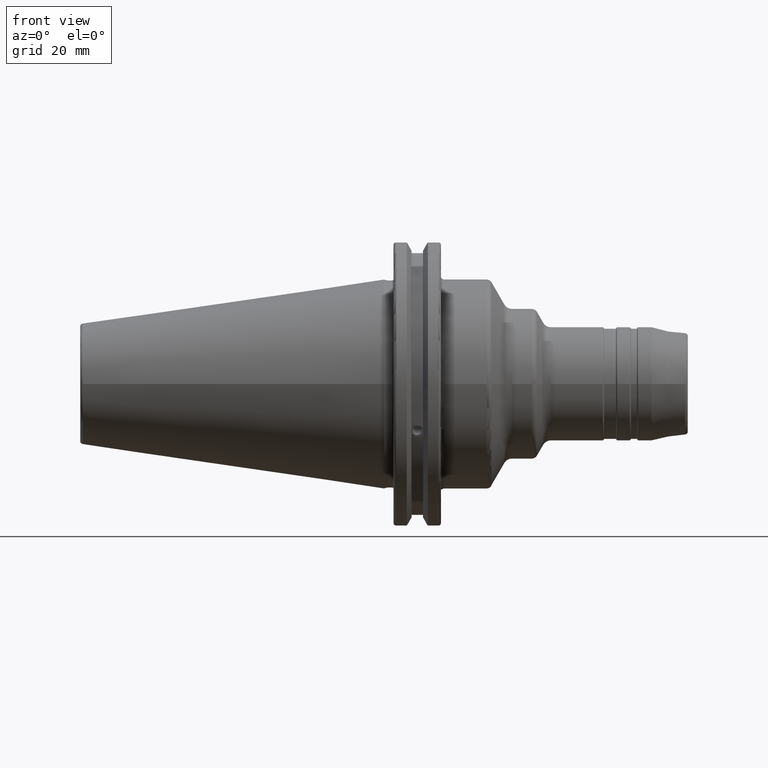
[diagram: clean part render]
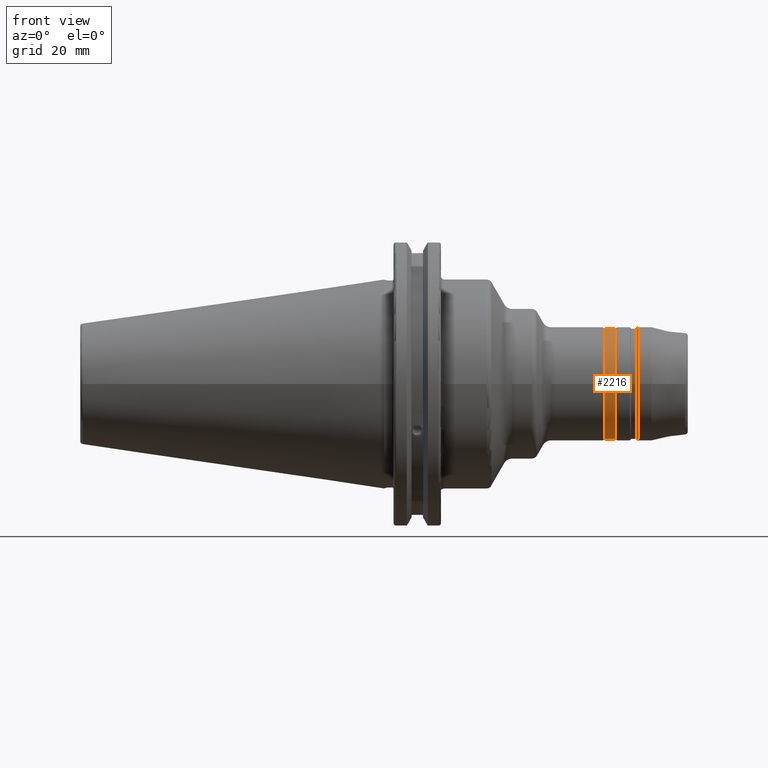
[diagram: same view with one face highlighted and labeled with its STEP entity id]
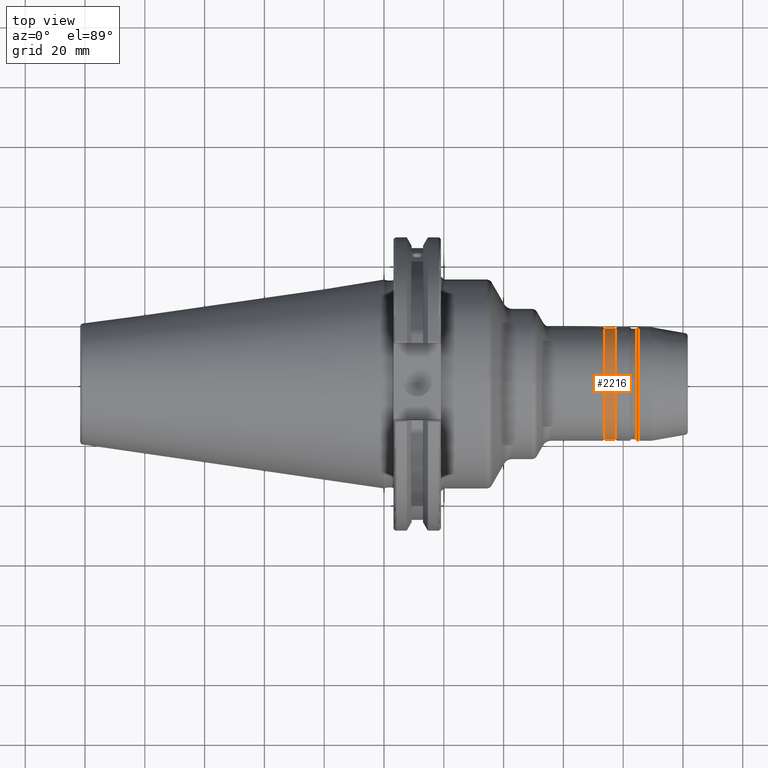
[diagram: same view with one face highlighted and labeled with its STEP entity id]
A machine part, front view. The second image highlights one B-rep face of the part: STEP entity #2216.
A second angle (top view) of the same face is appended — the face is thin or edge-on in the first view.
In plain terms, the highlighted cylindrical surface (bore or boss wall) has radius 18.5 mm, axis along (1, 0, 0).
Its self-contained STEP definition (entity closure, byte-faithful):
#181=FACE_OUTER_BOUND('',#295,.T.);
#295=EDGE_LOOP('',(#1526,#1527,#1528,#1529,#1530,#1531,#1532,#1533));
#421=LINE('',#3548,#528);
#528=VECTOR('',#2756,18.5);
#657=CIRCLE('',#2378,18.5);
#662=CIRCLE('',#2383,18.5);
#663=CIRCLE('',#2384,18.5);
#664=CIRCLE('',#2386,18.5);
#665=CIRCLE('',#2387,18.5);
#666=CIRCLE('',#2388,18.5);
#856=VERTEX_POINT('',#3533);
#857=VERTEX_POINT('',#3534);
#861=VERTEX_POINT('',#3543);
#862=VERTEX_POINT('',#3547);
#863=VERTEX_POINT('',#3549);
#864=VERTEX_POINT('',#3551);
#1127=EDGE_CURVE('',#856,#857,#657,.T.);
#1132=EDGE_CURVE('',#857,#861,#662,.T.);
#1133=EDGE_CURVE('',#861,#856,#663,.T.);
#1134=EDGE_CURVE('',#861,#862,#421,.T.);
#1135=EDGE_CURVE('',#863,#862,#664,.T.);
#1136=EDGE_CURVE('',#864,#863,#665,.T.);
#1137=EDGE_CURVE('',#862,#864,#666,.T.);
#1526=ORIENTED_EDGE('',*,*,#1127,.F.);
#1527=ORIENTED_EDGE('',*,*,#1133,.F.);
#1528=ORIENTED_EDGE('',*,*,#1134,.T.);
#1529=ORIENTED_EDGE('',*,*,#1135,.F.);
#1530=ORIENTED_EDGE('',*,*,#1136,.F.);
#1531=ORIENTED_EDGE('',*,*,#1137,.F.);
#1532=ORIENTED_EDGE('',*,*,#1134,.F.);
#1533=ORIENTED_EDGE('',*,*,#1132,.F.);
#2175=CYLINDRICAL_SURFACE('',#2385,18.5);
#2216=ADVANCED_FACE('',(#181),#2175,.T.);
#2378=AXIS2_PLACEMENT_3D('',#3535,#2740,#2741);
#2383=AXIS2_PLACEMENT_3D('',#3544,#2750,#2751);
#2384=AXIS2_PLACEMENT_3D('',#3545,#2752,#2753);
#2385=AXIS2_PLACEMENT_3D('',#3546,#2754,#2755);
#2386=AXIS2_PLACEMENT_3D('',#3550,#2757,#2758);
#2387=AXIS2_PLACEMENT_3D('',#3552,#2759,#2760);
#2388=AXIS2_PLACEMENT_3D('',#3553,#2761,#2762);
#2740=DIRECTION('center_axis',(1.,0.,0.));
#2741=DIRECTION('ref_axis',(0.,-1.,1.83697019872103E-16));
#2750=DIRECTION('center_axis',(1.,0.,0.));
#2751=DIRECTION('ref_axis',(0.,-1.,1.83697019872103E-16));
#2752=DIRECTION('center_axis',(1.,0.,0.));
#2753=DIRECTION('ref_axis',(0.,-1.,1.83697019872103E-16));
#2754=DIRECTION('center_axis',(1.,0.,0.));
#2755=DIRECTION('ref_axis',(0.,1.,0.));
#2756=DIRECTION('',(-1.,0.,0.));
#2757=DIRECTION('center_axis',(-1.,0.,0.));
#2758=DIRECTION('ref_axis',(0.,-1.,1.83697019872103E-16));
#2759=DIRECTION('center_axis',(-1.,0.,0.));
#2760=DIRECTION('ref_axis',(0.,-1.,1.83697019872103E-16));
#2761=DIRECTION('center_axis',(-1.,0.,0.));
#2762=DIRECTION('ref_axis',(0.,-1.,1.83697019872103E-16));
#3533=CARTESIAN_POINT('',(77.4845299461621,18.5,-1.1327982892113E-15));
#3534=CARTESIAN_POINT('',(77.4845299461621,-2.2655965784226E-15,18.5));
#3535=CARTESIAN_POINT('Origin',(77.4845299461621,0.,0.));
#3543=CARTESIAN_POINT('',(77.4845299461621,-18.5,-2.2655965784226E-15));
#3544=CARTESIAN_POINT('Origin',(77.4845299461621,0.,0.));
#3545=CARTESIAN_POINT('Origin',(77.4845299461621,0.,0.));
#3546=CARTESIAN_POINT('Origin',(75.6,0.,0.));
#3547=CARTESIAN_POINT('',(73.7154700538379,-18.5,-2.2655965784226E-15));
#3548=CARTESIAN_POINT('',(75.6,-18.5,-2.2655965784226E-15));
#3549=CARTESIAN_POINT('',(73.7154700538379,18.5,-5.66399144605651E-15));
#3550=CARTESIAN_POINT('Origin',(73.7154700538379,0.,0.));
#3551=CARTESIAN_POINT('',(73.7154700538379,-2.2655965784226E-15,18.5));
#3552=CARTESIAN_POINT('Origin',(73.7154700538379,0.,0.));
#3553=CARTESIAN_POINT('Origin',(73.7154700538379,0.,0.));